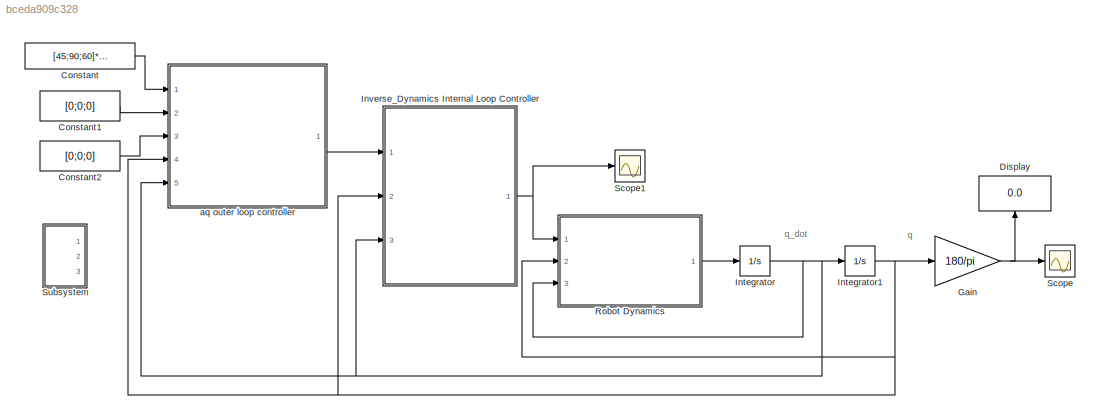
MODEL slx_bceda909c328
KIND model
CONFIG AbsTol = auto
CONFIG EnableMultiTasking = off
CONFIG FixedStep = .001
CONFIG MaxStep = .1
CONFIG MinStep = auto
CONFIG RelTol = 1e-3
CONFIG SampleTimeConstraint = Unconstrained
CONFIG Solver = ode23
CONFIG SolverName = ode23
CONFIG StartTime = 0.0
CONFIG StopTime = 5
BLOCK [Constant] Constant
  Value = [45;90;60]*pi/180
BLOCK [Constant] Constant1
  Value = [0;0;0]
BLOCK [Constant] Constant2
  Value = [0;0;0]
BLOCK [Display] Display
  Decimation = 1
  Ports = [1]
BLOCK [Gain] Gain
  Gain = 180/pi
BLOCK [Integrator] Integrator
  InitialCondition = zeros(3,1)
  Ports = [1, 1]
BLOCK [Integrator] Integrator1
  InitialCondition = [45;95;95]*pi/180*0
  Ports = [1, 1]
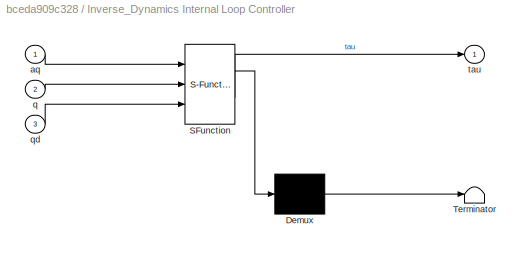
BLOCK [SubSystem] Inverse_Dynamics Internal Loop Controller
  ErrorFcn = Stateflow.Translate.translate
  PermitHierarchicalResolution = ExplicitOnly
  Ports = [3, 1]
  RequestExecContextInheritance = off
  SFBlockType = MATLAB Function
  TreatAsAtomicUnit = on
BLOCK [Demux] Inverse_Dynamics Internal Loop Controller/ Demux 
  Outputs = 1
  Ports = [1, 1]
BLOCK [S-Function] Inverse_Dynamics Internal Loop Controller/ SFunction 
  EnableBusSupport = off
  FunctionName = sf_sfun
  PortCounts = [3 2]
  Ports = [3, 2]
  SFcnIsStateOwnerBlock = off
  SFunctionDeploymentMode = off
  Tag = Stateflow S-Function inv_dynR2018a 1
BLOCK [Terminator] Inverse_Dynamics Internal Loop Controller/ Terminator 
BLOCK [Inport] Inverse_Dynamics Internal Loop Controller/aq
BLOCK [Inport] Inverse_Dynamics Internal Loop Controller/q
  Port = 2
BLOCK [Inport] Inverse_Dynamics Internal Loop Controller/qd
  Port = 3
BLOCK [Outport] Inverse_Dynamics Internal Loop Controller/tau
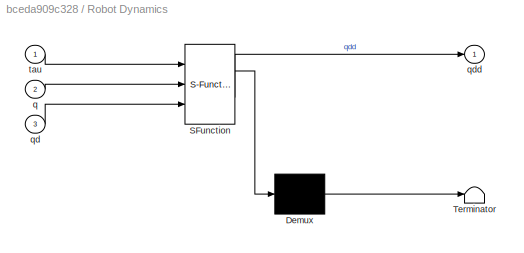
BLOCK [SubSystem] Robot Dynamics
  ErrorFcn = Stateflow.Translate.translate
  PermitHierarchicalResolution = ExplicitOnly
  Ports = [3, 1]
  RequestExecContextInheritance = off
  SFBlockType = MATLAB Function
  TreatAsAtomicUnit = on
BLOCK [Demux] Robot Dynamics/ Demux 
  Outputs = 1
  Ports = [1, 1]
BLOCK [S-Function] Robot Dynamics/ SFunction 
  EnableBusSupport = off
  FunctionName = sf_sfun
  PortCounts = [3 2]
  Ports = [3, 2]
  SFcnIsStateOwnerBlock = off
  SFunctionDeploymentMode = off
  Tag = Stateflow S-Function inv_dynR2018a 2
BLOCK [Terminator] Robot Dynamics/ Terminator 
BLOCK [Inport] Robot Dynamics/q
  Port = 2
BLOCK [Inport] Robot Dynamics/qd
  Port = 3
BLOCK [Outport] Robot Dynamics/qdd
BLOCK [Inport] Robot Dynamics/tau
BLOCK [Scope] Scope
  Floating = off
  NumInputPorts = 1
  Ports = [1]
  ScopeSpecificationString = Simulink.scopes.TimeScopeBlockCfg('CurrentConfiguration', extmgr.ConfigurationSet(extmgr.Configuration('Core','General UI',true),extmgr.Configuration('Core','Source UI',true),extmgr.Configuration('Sources','WiredSimulink',true,'DataLoggingVariableName','ScopeData1'),extmgr.Configuration('Visuals','Time Domain',true,'SerializedDisplays',{struct('MinYLimReal','-11.25368','MaxYLimReal','101.28315','Y...<+1369ch>
BLOCK [Scope] Scope1
  Floating = off
  NumInputPorts = 1
  Ports = [1]
  ScopeSpecificationString = Simulink.scopes.TimeScopeBlockCfg('CurrentConfiguration', extmgr.ConfigurationSet(extmgr.Configuration('Core','General UI',true),extmgr.Configuration('Core','Source UI',true),extmgr.Configuration('Sources','WiredSimulink',true,'DataLoggingVariableName','ScopeData1'),extmgr.Configuration('Visuals','Time Domain',true,'SerializedDisplays',{struct('MinYLimReal','-46.83042','MaxYLimReal','253.94366','Y...<+1528ch>
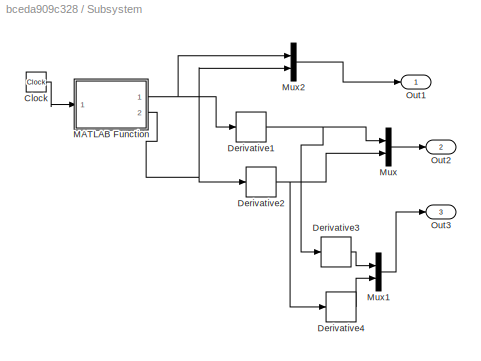
BLOCK [SubSystem] Subsystem
  Ports = [0, 3]
  RequestExecContextInheritance = off
BLOCK [Clock] Subsystem/Clock
BLOCK [Derivative] Subsystem/Derivative1
BLOCK [Derivative] Subsystem/Derivative2
BLOCK [Derivative] Subsystem/Derivative3
BLOCK [Derivative] Subsystem/Derivative4
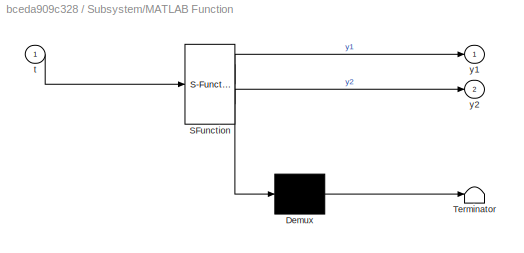
BLOCK [SubSystem] Subsystem/MATLAB Function
  ErrorFcn = Stateflow.Translate.translate
  PermitHierarchicalResolution = ExplicitOnly
  Ports = [1, 2]
  RequestExecContextInheritance = off
  SFBlockType = MATLAB Function
  TreatAsAtomicUnit = on
BLOCK [Demux] Subsystem/MATLAB Function/ Demux 
  Outputs = 1
  Ports = [1, 1]
BLOCK [S-Function] Subsystem/MATLAB Function/ SFunction 
  EnableBusSupport = off
  FunctionName = sf_sfun
  PortCounts = [1 3]
  Ports = [1, 3]
  SFcnIsStateOwnerBlock = off
  SFunctionDeploymentMode = off
  Tag = Stateflow S-Function inv_dynR2018a 3
BLOCK [Terminator] Subsystem/MATLAB Function/ Terminator 
BLOCK [Inport] Subsystem/MATLAB Function/t
BLOCK [Outport] Subsystem/MATLAB Function/y1
BLOCK [Outport] Subsystem/MATLAB Function/y2
  Port = 2
BLOCK [Mux] Subsystem/Mux
  DisplayOption = bar
  Inputs = 2
  Ports = [2, 1]
BLOCK [Mux] Subsystem/Mux1
  DisplayOption = bar
  Inputs = 2
  Ports = [2, 1]
BLOCK [Mux] Subsystem/Mux2
  DisplayOption = bar
  Inputs = 2
  Ports = [2, 1]
BLOCK [Outport] Subsystem/Out1
BLOCK [Outport] Subsystem/Out2
  Port = 2
BLOCK [Outport] Subsystem/Out3
  Port = 3
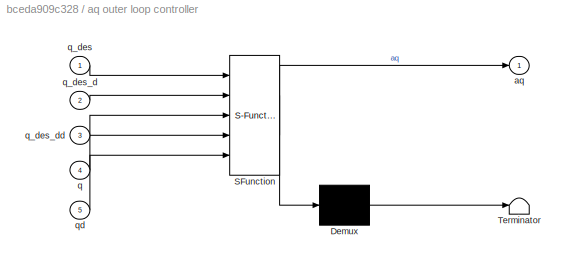
BLOCK [SubSystem] aq outer loop controller
  ErrorFcn = Stateflow.Translate.translate
  PermitHierarchicalResolution = ExplicitOnly
  Ports = [5, 1]
  RequestExecContextInheritance = off
  SFBlockType = MATLAB Function
  TreatAsAtomicUnit = on
BLOCK [Demux] aq outer loop controller/ Demux 
  Outputs = 1
  Ports = [1, 1]
BLOCK [S-Function] aq outer loop controller/ SFunction 
  EnableBusSupport = off
  FunctionName = sf_sfun
  PortCounts = [5 2]
  Ports = [5, 2]
  SFcnIsStateOwnerBlock = off
  SFunctionDeploymentMode = off
  Tag = Stateflow S-Function inv_dynR2018a 4
BLOCK [Terminator] aq outer loop controller/ Terminator 
BLOCK [Outport] aq outer loop controller/aq
BLOCK [Inport] aq outer loop controller/q
  Port = 4
BLOCK [Inport] aq outer loop controller/q_des
BLOCK [Inport] aq outer loop controller/q_des_d
  Port = 2
BLOCK [Inport] aq outer loop controller/q_des_dd
  Port = 3
BLOCK [Inport] aq outer loop controller/qd
  Port = 5
ANNOTATION (root): q
ANNOTATION (root): q_dot
LINE Constant1:1 -> aq outer loop controller:2
LINE Constant2:1 -> aq outer loop controller:3
LINE Constant:1 -> aq outer loop controller:1
NET Gain:1 -> Display:1, Scope:1
NET Integrator1:1 -> Gain:1, Inverse_Dynamics Internal Loop Controller:2, Robot Dynamics:2, aq outer loop controller:4
NET Integrator:1 -> Integrator1:1, Inverse_Dynamics Internal Loop Controller:3, Robot Dynamics:3, aq outer loop controller:5
NET Inverse_Dynamics Internal Loop Controller:1 -> Robot Dynamics:1, Scope1:1
LINE Robot Dynamics:1 -> Integrator:1
LINE Subsystem/Clock:1 -> Subsystem/MATLAB Function:1
NET Subsystem/Derivative1:1 -> Subsystem/Derivative3:1, Subsystem/Mux:1
NET Subsystem/Derivative2:1 -> Subsystem/Derivative4:1, Subsystem/Mux:2
LINE Subsystem/Derivative3:1 -> Subsystem/Mux1:1
LINE Subsystem/Derivative4:1 -> Subsystem/Mux1:2
NET Subsystem/MATLAB Function:1 -> Subsystem/Derivative1:1, Subsystem/Mux2:1
NET Subsystem/MATLAB Function:2 -> Subsystem/Derivative2:1, Subsystem/Mux2:2
LINE Subsystem/Mux1:1 -> Subsystem/Out3:1
LINE Subsystem/Mux2:1 -> Subsystem/Out1:1
LINE Subsystem/Mux:1 -> Subsystem/Out2:1
LINE aq outer loop controller:1 -> Inverse_Dynamics Internal Loop Controller:1
note: NET lines group one-source signal fan-out (src -> all destinations, sorted); 1:1 wires keep LINE
CHART Inverse_Dynamics
Internal Loop Controller states=1 transitions=1
  STATE_LABEL 'eML_blk_kernel()'
  STATE_LABEL 'SCRIPT:\nfunction tau = fcn(aq,q,qd)\n\nq1=q(1);\nq2=q(2);\nq3=q(3);\n\nq1d=qd(1);\nq2d=qd(2);\nq3d=qd(3);\n\n%%%%%%%%%%%%%%Estimation\n\ng=9.81;\n%% D matrix\na1 = 3711123.19;\na2 = 596800.7545;\na3 = 331555.9747;\na4 = 53642.39711;\na5 = 634939.518;\na6 = 2803935.578;\na7 = 2828662.354;\na8 = 99466.79242;\na9 = 100433.5775;\na10 = 10959503.36;\na11 = 938582.3772;\na12 = 1193601.509;\na13 = 36757.08547;\n\nb1 = 0.9129049856;...<+1873ch>'
CHART Robot Dynamics states=1 transitions=1
  STATE_LABEL 'eML_blk_kernel()'
  STATE_LABEL 'SCRIPT:\nfunction qdd = fcn(tau,q,qd)\n\nq1=q(1);\nq2=q(2);\nq3=q(3);\n\nq1d=qd(1);\nq2d=qd(2);\nq3d=qd(3);\n\n%%%%%%%%%%%%%%Estimation\n\ng=9.81;\n%% D matrix\na1 = 3711123.19;\na2 = 596800.7545;\na3 = 331555.9747;\na4 = 53642.39711;\na5 = 634939.518;\na6 = 2803935.578;\na7 = 2828662.354;\na8 = 99466.79242;\na9 = 100433.5775;\na10 = 10959503.36;\na11 = 938582.3772;\na12 = 1193601.509;\na13 = 36757.08547;\n\nb1 = 0.9129049856...<+1783ch>'
CHART Subsystem/MATLAB Function states=1 transitions=1
  STATE_LABEL 'eML_blk_kernel()'
  STATE_LABEL 'SCRIPT:\nfunction [y1,y2]= fcn(t)\n\ny1=sin(.1*t);\ny2=sin(.05*t+pi/6);\n'
CHART aq
outer loop controller states=1 transitions=1
  STATE_LABEL 'eML_blk_kernel()'
  STATE_LABEL "SCRIPT:\nfunction aq = fcn(q_des,q_des_d,q_des_dd,q,qd)\n\nq1=q(1);\nq2=q(2);\nq3=q(3);\n\nq1d=qd(1);\nq2d=qd(2);\nq3d=qd(3);\n\n\n\n\n\nq_tilde=q-q_des;\nq_tilde_d=qd-q_des_d;\n\n\nzita=1;\nwn=2*pi*3;\n\nK1=eye(3)*2*zita*wn;\nK0=eye(3)*wn^2;\n\n\nB=[zeros(3,3);eye(3)];\ne=[q_tilde;q_tilde_d];\nP=eye(6);\nrho=.1;\n\n\nif norm(B'*P*e)~=0\n    delta=-rho*(B'*P*e)/norm(B'*P*e);\nelse\n    delta=zeros(3,1);\nend\n\n%delta=0*delta;\n\naq=q_d...<+51ch>"
